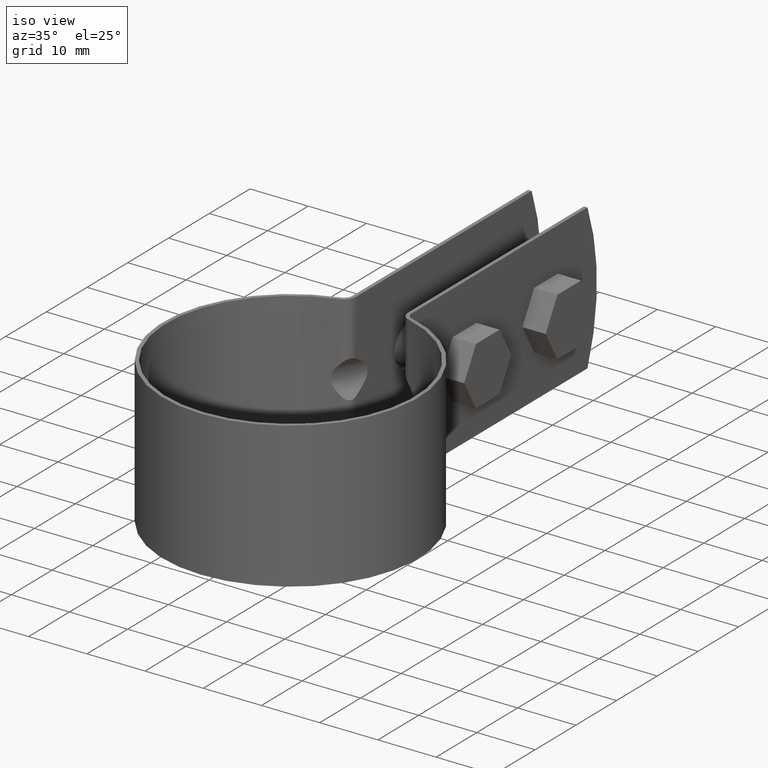
[diagram: clean part render]
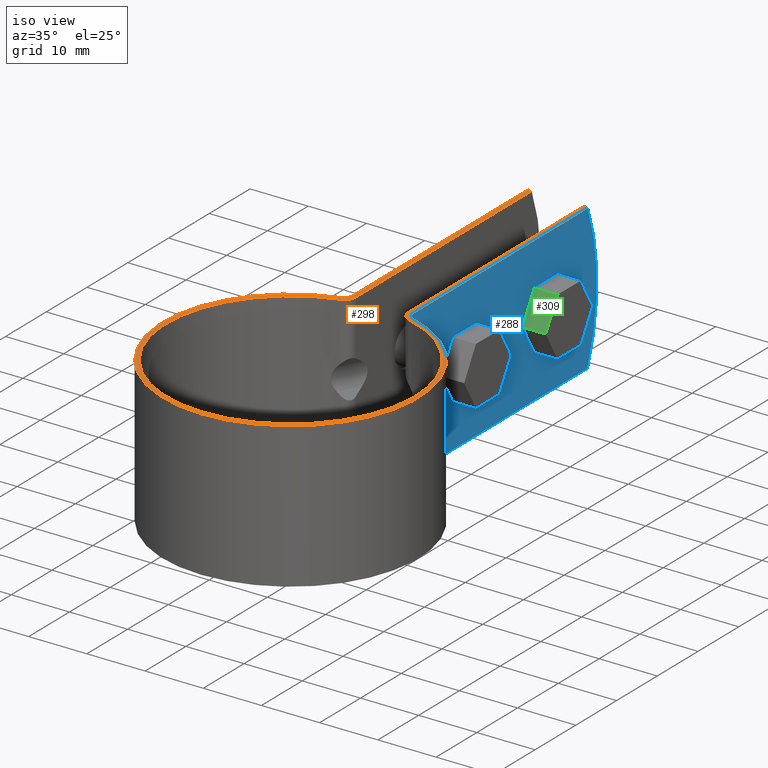
[diagram: same view with three faces highlighted in distinct colors, each labeled with its STEP entity id]
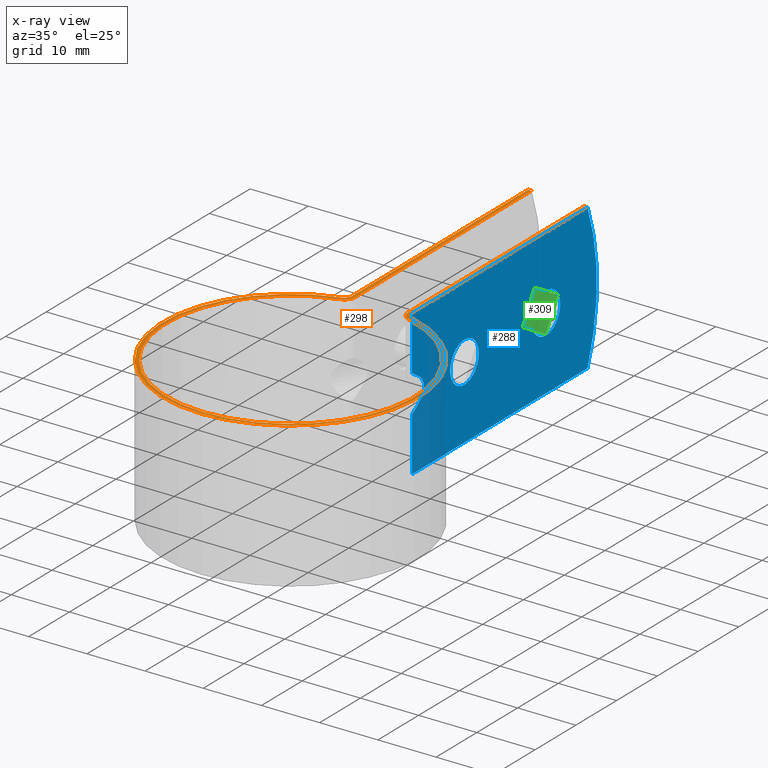
[diagram: x-ray of the same camera — body ghosted, the three highlighted faces saturated]
A machine part, iso view with three faces highlighted in distinct colors.
The next image is the same camera in x-ray (body ghosted, the three faces saturated) — at least one of them is partly hidden behind the body in this view.
Their STEP definitions:

[orange] entity #298 — the highlighted planar face has unit normal (0, 0, -1).
#298 = ADVANCED_FACE( '', ( #444 ), #445, .F. );
#444 = FACE_OUTER_BOUND( '', #676, .T. );
#445 = PLANE( '', #677 );
#676 = EDGE_LOOP( '', ( #1091, #1092, #1093, #1094, #1095, #1096, #1097, #1098, #1099, #1100, #1101, #1102 ) );
#677 = AXIS2_PLACEMENT_3D( '', #1103, #1104, #1105 );
#1091 = ORIENTED_EDGE( '', *, *, #1682, .F. );
#1092 = ORIENTED_EDGE( '', *, *, #1688, .T. );
#1093 = ORIENTED_EDGE( '', *, *, #1696, .T. );
#1094 = ORIENTED_EDGE( '', *, *, #1636, .T. );
#1095 = ORIENTED_EDGE( '', *, *, #1633, .T. );
#1096 = ORIENTED_EDGE( '', *, *, #1693, .T. );
#1097 = ORIENTED_EDGE( '', *, *, #1684, .F. );
#1098 = ORIENTED_EDGE( '', *, *, #1695, .F. );
#1099 = ORIENTED_EDGE( '', *, *, #1698, .F. );
#1100 = ORIENTED_EDGE( '', *, *, #1701, .F. );
#1101 = ORIENTED_EDGE( '', *, *, #1706, .F. );
#1102 = ORIENTED_EDGE( '', *, *, #1703, .F. );
#1103 = CARTESIAN_POINT( '', ( -4.50000000000000, 67.8703737388673, 12.5000000000000 ) );
#1104 = DIRECTION( '', ( 0.000000000000000, 0.000000000000000, -1.00000000000000 ) );
#1105 = DIRECTION( '', ( -6.06692130572647E-017, -1.00000000000000, 0.000000000000000 ) );
#1633 = EDGE_CURVE( '', #1888, #1886, #1889, .F. );
#1636 = EDGE_CURVE( '', #1893, #1888, #1894, .T. );
#1682 = EDGE_CURVE( '', #1972, #1974, #1975, .T. );
#1684 = EDGE_CURVE( '', #1977, #1978, #1979, .T. );
#1688 = EDGE_CURVE( '', #1972, #1982, #1984, .T. );
#1693 = EDGE_CURVE( '', #1886, #1978, #1991, .T. );
#1695 = EDGE_CURVE( '', #1992, #1977, #1994, .T. );
#1696 = EDGE_CURVE( '', #1982, #1893, #1995, .F. );
#1698 = EDGE_CURVE( '', #1996, #1992, #1998, .T. );
#1701 = EDGE_CURVE( '', #2000, #1996, #2002, .T. );
#1703 = EDGE_CURVE( '', #1974, #2004, #2005, .T. );
#1706 = EDGE_CURVE( '', #2004, #2000, #2008, .T. );
#1886 = VERTEX_POINT( '', #2294 );
#1888 = VERTEX_POINT( '', #2297 );
#1889 = CIRCLE( '', #2298, 1.40000000000000 );
#1893 = VERTEX_POINT( '', #2303 );
#1894 = CIRCLE( '', #2304, 21.9500000000000 );
#1972 = VERTEX_POINT( '', #2467 );
#1974 = VERTEX_POINT( '', #2469 );
#1975 = LINE( '', #2470, #2471 );
#1977 = VERTEX_POINT( '', #2473 );
#1978 = VERTEX_POINT( '', #2474 );
#1979 = LINE( '', #2475, #2476 );
#1982 = VERTEX_POINT( '', #2479 );
#1984 = LINE( '', #2482, #2483 );
#1991 = LINE( '', #2493, #2494 );
#1992 = VERTEX_POINT( '', #2495 );
#1994 = LINE( '', #2498, #2499 );
#1995 = CIRCLE( '', #2500, 1.40000000000000 );
#1996 = VERTEX_POINT( '', #2501 );
#1998 = CIRCLE( '', #2504, 2.00000000000000 );
#2000 = VERTEX_POINT( '', #2507 );
#2002 = CIRCLE( '', #2510, 21.3500000000000 );
#2004 = VERTEX_POINT( '', #2513 );
#2005 = LINE( '', #2514, #2515 );
#2008 = CIRCLE( '', #2519, 2.00000000000000 );
#2294 = CARTESIAN_POINT( '', ( 5.10000000000000, 22.4270484014281, 12.5000000000000 ) );
#2297 = CARTESIAN_POINT( '', ( 6.11027837259102, 21.0823859705074, 12.5000000000000 ) );
#2298 = AXIS2_PLACEMENT_3D( '', #2991, #2992, #2993 );
#2303 = CARTESIAN_POINT( '', ( -6.11027837259100, 21.0823859705074, 12.5000000000000 ) );
#2304 = AXIS2_PLACEMENT_3D( '', #2998, #2999, #3000 );
#2467 = CARTESIAN_POINT( '', ( -5.09999999999999, 65.5621158154223, 12.5000000000000 ) );
#2469 = CARTESIAN_POINT( '', ( -4.49999999999996, 65.5621158154223, 12.5000000000000 ) );
#2470 = CARTESIAN_POINT( '', ( -73.2833424435329, 65.5621158154223, 12.5000000000000 ) );
#2471 = VECTOR( '', #3090, 1000.00000000000 );
#2473 = CARTESIAN_POINT( '', ( 4.50000000000003, 65.5621158154223, 12.5000000000000 ) );
#2474 = CARTESIAN_POINT( '', ( 5.10000000000001, 65.5621158154223, 12.5000000000000 ) );
#2475 = CARTESIAN_POINT( '', ( -73.2833424435329, 65.5621158154223, 12.5000000000000 ) );
#2476 = VECTOR( '', #3094, 1000.00000000000 );
#2479 = CARTESIAN_POINT( '', ( -5.10000000000000, 22.4270484014281, 12.5000000000000 ) );
#2482 = CARTESIAN_POINT( '', ( -5.10000000000000, 67.8703737388673, 12.5000000000000 ) );
#2483 = VECTOR( '', #3102, 1000.00000000000 );
#2493 = CARTESIAN_POINT( '', ( 5.10000000000000, 22.4270484014281, 12.5000000000000 ) );
#2494 = VECTOR( '', #3109, 1000.00000000000 );
#2495 = CARTESIAN_POINT( '', ( 4.50000000000000, 22.4270484014281, 12.5000000000000 ) );
#2498 = CARTESIAN_POINT( '', ( 4.50000000000000, 22.4270484014281, 12.5000000000000 ) );
#2499 = VECTOR( '', #3111, 1000.00000000000 );
#2500 = AXIS2_PLACEMENT_3D( '', #3112, #3113, #3114 );
#2501 = CARTESIAN_POINT( '', ( 5.94325481798716, 20.5061020715413, 12.5000000000000 ) );
#2504 = AXIS2_PLACEMENT_3D( '', #3116, #3117, #3118 );
#2507 = CARTESIAN_POINT( '', ( -5.94325481798715, 20.5061020715414, 12.5000000000000 ) );
#2510 = AXIS2_PLACEMENT_3D( '', #3121, #3122, #3123 );
#2513 = CARTESIAN_POINT( '', ( -4.50000000000000, 22.4270484014281, 12.5000000000000 ) );
#2514 = CARTESIAN_POINT( '', ( -4.50000000000000, 67.8703737388673, 12.5000000000000 ) );
#2515 = VECTOR( '', #3125, 1000.00000000000 );
#2519 = AXIS2_PLACEMENT_3D( '', #3130, #3131, #3132 );
#2991 = CARTESIAN_POINT( '', ( 6.50000000000000, 22.4270484014281, 12.5000000000000 ) );
#2992 = DIRECTION( '', ( 0.000000000000000, 0.000000000000000, 1.00000000000000 ) );
#2993 = DIRECTION( '', ( 1.00000000000000, 0.000000000000000, 0.000000000000000 ) );
#2998 = CARTESIAN_POINT( '', ( 0.000000000000000, 0.000000000000000, 12.5000000000000 ) );
#2999 = DIRECTION( '', ( 0.000000000000000, 0.000000000000000, 1.00000000000000 ) );
#3000 = DIRECTION( '', ( 1.00000000000000, 0.000000000000000, 0.000000000000000 ) );
#3090 = DIRECTION( '', ( 1.00000000000000, -6.06692130572647E-017, -3.08148791101958E-033 ) );
#3094 = DIRECTION( '', ( 1.00000000000000, -6.06692130572647E-017, -3.08148791101958E-033 ) );
#3102 = DIRECTION( '', ( -6.06692130572647E-017, -1.00000000000000, 0.000000000000000 ) );
#3109 = DIRECTION( '', ( 6.06692130572647E-017, 1.00000000000000, 0.000000000000000 ) );
#3111 = DIRECTION( '', ( 6.06692130572647E-017, 1.00000000000000, 0.000000000000000 ) );
#3112 = CARTESIAN_POINT( '', ( -6.50000000000000, 22.4270484014281, 12.5000000000000 ) );
#3113 = DIRECTION( '', ( 0.000000000000000, 0.000000000000000, 1.00000000000000 ) );
#3114 = DIRECTION( '', ( 1.00000000000000, 0.000000000000000, 0.000000000000000 ) );
#3116 = CARTESIAN_POINT( '', ( 6.50000000000000, 22.4270484014281, 12.5000000000000 ) );
#3117 = DIRECTION( '', ( 0.000000000000000, 0.000000000000000, -1.00000000000000 ) );
#3118 = DIRECTION( '', ( -1.00000000000000, 6.06692130572647E-017, 0.000000000000000 ) );
#3121 = CARTESIAN_POINT( '', ( 0.000000000000000, 0.000000000000000, 12.5000000000000 ) );
#3122 = DIRECTION( '', ( 0.000000000000000, 0.000000000000000, 1.00000000000000 ) );
#3123 = DIRECTION( '', ( 1.00000000000000, -6.06692130572647E-017, 0.000000000000000 ) );
#3125 = DIRECTION( '', ( -6.06692130572647E-017, -1.00000000000000, 0.000000000000000 ) );
#3130 = CARTESIAN_POINT( '', ( -6.50000000000000, 22.4270484014281, 12.5000000000000 ) );
#3131 = DIRECTION( '', ( 0.000000000000000, 0.000000000000000, -1.00000000000000 ) );
#3132 = DIRECTION( '', ( 1.00000000000000, -6.06692130572647E-017, 0.000000000000000 ) );

[blue] entity #288 — the highlighted planar face has unit normal (1, -0, 0).
#288 = ADVANCED_FACE( '', ( #418, #419, #420 ), #421, .T. );
#418 = FACE_OUTER_BOUND( '', #650, .T. );
#419 = FACE_BOUND( '', #651, .T. );
#420 = FACE_BOUND( '', #652, .T. );
#421 = PLANE( '', #653 );
#650 = EDGE_LOOP( '', ( #995, #996, #997, #998, #999, #1000, #1001, #1002 ) );
#651 = EDGE_LOOP( '', ( #1003 ) );
#652 = EDGE_LOOP( '', ( #1004 ) );
#653 = AXIS2_PLACEMENT_3D( '', #1005, #1006, #1007 );
#995 = ORIENTED_EDGE( '', *, *, #1646, .F. );
#996 = ORIENTED_EDGE( '', *, *, #1690, .F. );
#997 = ORIENTED_EDGE( '', *, *, #1691, .F. );
#998 = ORIENTED_EDGE( '', *, *, #1692, .F. );
#999 = ORIENTED_EDGE( '', *, *, #1621, .T. );
#1000 = ORIENTED_EDGE( '', *, *, #1685, .T. );
#1001 = ORIENTED_EDGE( '', *, *, #1693, .F. );
#1002 = ORIENTED_EDGE( '', *, *, #1632, .F. );
#1003 = ORIENTED_EDGE( '', *, *, #1679, .T. );
#1004 = ORIENTED_EDGE( '', *, *, #1675, .T. );
#1005 = CARTESIAN_POINT( '', ( 5.10000000000000, 22.4270484014281, -12.5000000000000 ) );
#1006 = DIRECTION( '', ( 1.00000000000000, -6.06692130572647E-017, 0.000000000000000 ) );
#1007 = DIRECTION( '', ( 6.06692130572647E-017, 1.00000000000000, 0.000000000000000 ) );
#1621 = EDGE_CURVE( '', #1865, #1862, #1866, .T. );
#1632 = EDGE_CURVE( '', #1883, #1886, #1887, .T. );
#1646 = EDGE_CURVE( '', #1909, #1883, #1911, .T. );
#1675 = EDGE_CURVE( '', #1960, #1960, #1961, .F. );
#1679 = EDGE_CURVE( '', #1968, #1968, #1969, .F. );
#1685 = EDGE_CURVE( '', #1862, #1978, #1980, .T. );
#1690 = EDGE_CURVE( '', #1986, #1909, #1987, .T. );
#1691 = EDGE_CURVE( '', #1988, #1986, #1989, .T. );
#1692 = EDGE_CURVE( '', #1865, #1988, #1990, .T. );
#1693 = EDGE_CURVE( '', #1886, #1978, #1991, .T. );
#1862 = VERTEX_POINT( '', #2264 );
#1865 = VERTEX_POINT( '', #2268 );
#1866 = LINE( '', #2269, #2270 );
#1883 = VERTEX_POINT( '', #2291 );
#1886 = VERTEX_POINT( '', #2294 );
#1887 = LINE( '', #2295, #2296 );
#1909 = VERTEX_POINT( '', #2356 );
#1911 = LINE( '', #2359, #2360 );
#1960 = VERTEX_POINT( '', #2455 );
#1961 = CIRCLE( '', #2456, 3.50000000000000 );
#1968 = VERTEX_POINT( '', #2463 );
#1969 = CIRCLE( '', #2464, 3.50000000000000 );
#1978 = VERTEX_POINT( '', #2474 );
#1980 = CIRCLE( '', #2477, 35.0000000000000 );
#1986 = VERTEX_POINT( '', #2486 );
#1987 = ELLIPSE( '', #2487, 8.81075705834105, 4.00000000000000 );
#1988 = VERTEX_POINT( '', #2488 );
#1989 = LINE( '', #2489, #2490 );
#1990 = LINE( '', #2491, #2492 );
#1991 = LINE( '', #2493, #2494 );
#2264 = CARTESIAN_POINT( '', ( 5.10000000000001, 65.5621158154223, -12.5000000000000 ) );
#2268 = CARTESIAN_POINT( '', ( 5.10000000000000, 22.4270484014281, -12.5000000000000 ) );
#2269 = CARTESIAN_POINT( '', ( 5.10000000000000, 22.4270484014281, -12.5000000000000 ) );
#2270 = VECTOR( '', #2967, 1000.00000000000 );
#2291 = CARTESIAN_POINT( '', ( 5.10000000000000, 22.4270484014281, 3.22573016462234 ) );
#2294 = CARTESIAN_POINT( '', ( 5.10000000000000, 22.4270484014281, 12.5000000000000 ) );
#2295 = CARTESIAN_POINT( '', ( 5.10000000000000, 22.4270484014281, -12.5000000000000 ) );
#2296 = VECTOR( '', #2990, 1000.00000000000 );
#2356 = CARTESIAN_POINT( '', ( 5.10000000000000, 23.8636211931129, 2.29430574540413 ) );
#2359 = CARTESIAN_POINT( '', ( 5.10000000000000, 29.6054354213314, -1.42848923841662 ) );
#2360 = VECTOR( '', #3014, 1000.00000000000 );
#2455 = CARTESIAN_POINT( '', ( 5.10000000000000, 38.8703737388673, -8.67361737988404E-016 ) );
#2456 = AXIS2_PLACEMENT_3D( '', #3069, #3070, #3071 );
#2463 = CARTESIAN_POINT( '', ( 5.10000000000000, 58.8703737388673, -8.67361737988404E-016 ) );
#2464 = AXIS2_PLACEMENT_3D( '', #3081, #3082, #3083 );
#2474 = CARTESIAN_POINT( '', ( 5.10000000000001, 65.5621158154223, 12.5000000000000 ) );
#2477 = AXIS2_PLACEMENT_3D( '', #3095, #3096, #3097 );
#2486 = CARTESIAN_POINT( '', ( 5.10000000000000, 23.8636211931129, -2.29430574540421 ) );
#2487 = AXIS2_PLACEMENT_3D( '', #3104, #3105, #3106 );
#2488 = CARTESIAN_POINT( '', ( 5.10000000000000, 22.4270484014281, -3.22573016462243 ) );
#2489 = CARTESIAN_POINT( '', ( 5.10000000000000, 18.1935853120560, -5.97056211614217 ) );
#2490 = VECTOR( '', #3107, 1000.00000000000 );
#2491 = CARTESIAN_POINT( '', ( 5.10000000000000, 22.4270484014281, -12.5000000000000 ) );
#2492 = VECTOR( '', #3108, 1000.00000000000 );
#2493 = CARTESIAN_POINT( '', ( 5.10000000000000, 22.4270484014281, 12.5000000000000 ) );
#2494 = VECTOR( '', #3109, 1000.00000000000 );
#2967 = DIRECTION( '', ( 6.06692130572647E-017, 1.00000000000000, 0.000000000000000 ) );
#2990 = DIRECTION( '', ( 0.000000000000000, 0.000000000000000, 1.00000000000000 ) );
#3014 = DIRECTION( '', ( -5.09056978337516E-017, -0.839069690679893, 0.544023946331730 ) );
#3069 = CARTESIAN_POINT( '', ( 5.10000000000000, 35.3703737388673, -8.67361737988404E-016 ) );
#3070 = DIRECTION( '', ( 1.00000000000000, -6.06692130572647E-017, 0.000000000000000 ) );
#3071 = DIRECTION( '', ( 6.06692130572647E-017, 1.00000000000000, 0.000000000000000 ) );
#3081 = CARTESIAN_POINT( '', ( 5.10000000000000, 55.3703737388673, -8.67361737988404E-016 ) );
#3082 = DIRECTION( '', ( 1.00000000000000, -6.06692130572647E-017, 0.000000000000000 ) );
#3083 = DIRECTION( '', ( 6.06692130572647E-017, 1.00000000000000, 0.000000000000000 ) );
#3095 = CARTESIAN_POINT( '', ( 5.10000000000001, 32.8703737388673, -2.41537322165054E-031 ) );
#3096 = DIRECTION( '', ( 1.00000000000000, -6.06692130572647E-017, 0.000000000000000 ) );
#3097 = DIRECTION( '', ( 6.06692130572647E-017, 1.00000000000000, 0.000000000000000 ) );
#3104 = CARTESIAN_POINT( '', ( 5.10000000000000, 16.6462715370392, -5.85061194340417E-014 ) );
#3105 = DIRECTION( '', ( 1.00000000000000, -6.06692130572647E-017, 0.000000000000000 ) );
#3106 = DIRECTION( '', ( 6.06692130572647E-017, 1.00000000000000, 9.96825944130074E-016 ) );
#3107 = DIRECTION( '', ( 8.05405233250115E-017, 0.839069690679892, 0.544023946331730 ) );
#3108 = DIRECTION( '', ( 0.000000000000000, 0.000000000000000, 1.00000000000000 ) );
#3109 = DIRECTION( '', ( 6.06692130572647E-017, 1.00000000000000, 0.000000000000000 ) );

[green] entity #309 — the highlighted planar face has unit normal (0, 0.866, -0.5).
#309 = ADVANCED_FACE( '', ( #469 ), #470, .F. );
#469 = FACE_OUTER_BOUND( '', #701, .T. );
#470 = PLANE( '', #702 );
#701 = EDGE_LOOP( '', ( #1174, #1175, #1176, #1177 ) );
#702 = AXIS2_PLACEMENT_3D( '', #1178, #1179, #1180 );
#1174 = ORIENTED_EDGE( '', *, *, #1710, .T. );
#1175 = ORIENTED_EDGE( '', *, *, #1726, .F. );
#1176 = ORIENTED_EDGE( '', *, *, #1724, .F. );
#1177 = ORIENTED_EDGE( '', *, *, #1727, .T. );
#1178 = CARTESIAN_POINT( '', ( 9.10000000000000, 52.4836223929191, 5.00000000000000 ) );
#1179 = DIRECTION( '', ( 5.25410797352018E-017, 0.866025403784439, -0.500000000000000 ) );
#1180 = DIRECTION( '', ( 3.03346065286324E-017, 0.500000000000000, 0.866025403784439 ) );
#1710 = EDGE_CURVE( '', #2015, #2013, #2016, .T. );
#1724 = EDGE_CURVE( '', #2038, #2040, #2041, .T. );
#1726 = EDGE_CURVE( '', #2040, #2013, #2043, .T. );
#1727 = EDGE_CURVE( '', #2038, #2015, #2044, .T. );
#2013 = VERTEX_POINT( '', #2526 );
#2015 = VERTEX_POINT( '', #2529 );
#2016 = LINE( '', #2530, #2531 );
#2038 = VERTEX_POINT( '', #2562 );
#2040 = VERTEX_POINT( '', #2565 );
#2041 = LINE( '', #2566, #2567 );
#2043 = LINE( '', #2570, #2571 );
#2044 = LINE( '', #2572, #2573 );
#2526 = CARTESIAN_POINT( '', ( 5.10000000000000, 49.5968710469710, -8.67361737988404E-016 ) );
#2529 = CARTESIAN_POINT( '', ( 5.10000000000000, 52.4836223929191, 5.00000000000000 ) );
#2530 = CARTESIAN_POINT( '', ( 5.10000000000000, 52.4836223929191, 5.00000000000000 ) );
#2531 = VECTOR( '', #3136, 1000.00000000000 );
#2562 = CARTESIAN_POINT( '', ( 9.10000000000000, 52.4836223929191, 5.00000000000000 ) );
#2565 = CARTESIAN_POINT( '', ( 9.10000000000000, 49.5968710469710, -8.67361737988404E-016 ) );
#2566 = CARTESIAN_POINT( '', ( 9.10000000000000, 52.4836223929191, 5.00000000000000 ) );
#2567 = VECTOR( '', #3156, 1000.00000000000 );
#2570 = CARTESIAN_POINT( '', ( 9.10000000000000, 49.5968710469710, -8.67361737988404E-016 ) );
#2571 = VECTOR( '', #3158, 1000.00000000000 );
#2572 = CARTESIAN_POINT( '', ( 9.10000000000000, 52.4836223929191, 5.00000000000000 ) );
#2573 = VECTOR( '', #3159, 1000.00000000000 );
#3136 = DIRECTION( '', ( -3.03346065286324E-017, -0.500000000000000, -0.866025403784439 ) );
#3156 = DIRECTION( '', ( -3.03346065286324E-017, -0.500000000000000, -0.866025403784439 ) );
#3158 = DIRECTION( '', ( -1.00000000000000, 6.06692130572647E-017, 0.000000000000000 ) );
#3159 = DIRECTION( '', ( -1.00000000000000, 6.06692130572647E-017, 0.000000000000000 ) );